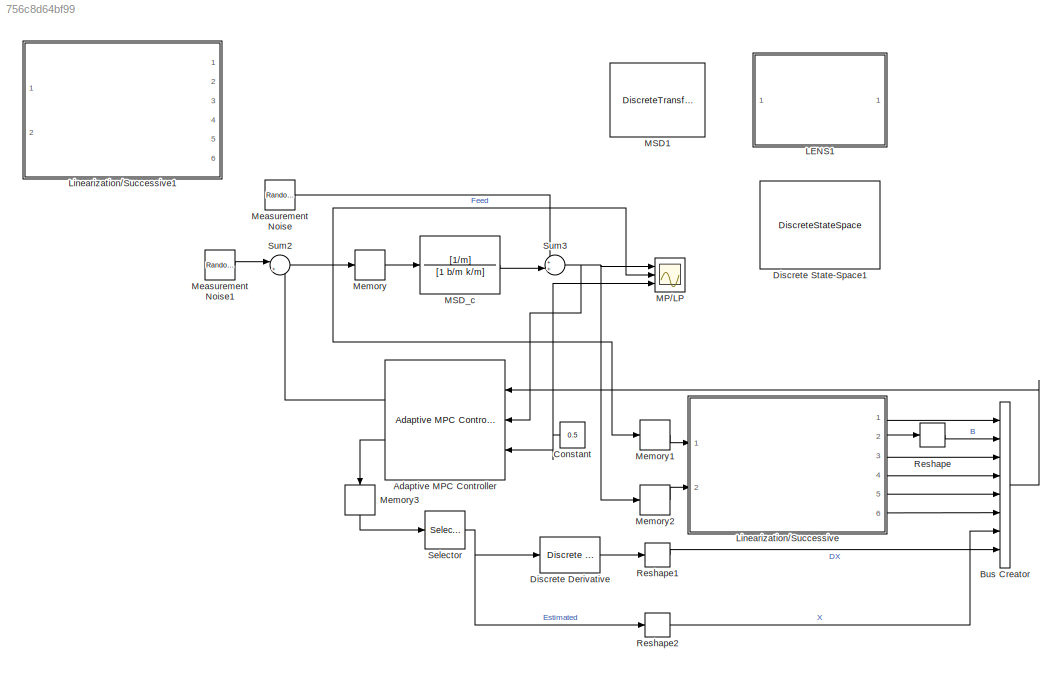
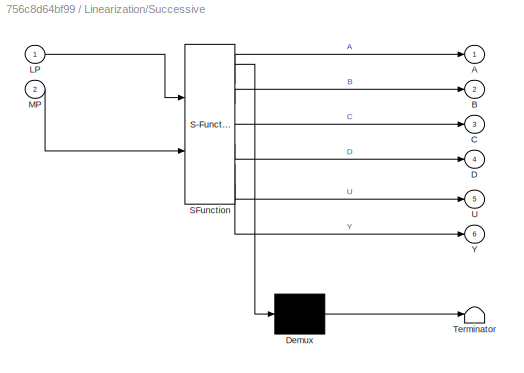
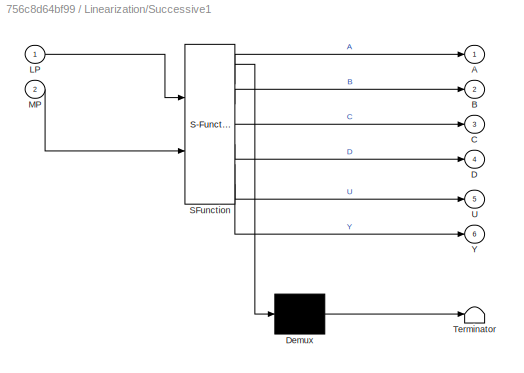
MODEL slx_756c8d64bf99
KIND model
CONFIG AbsTol = auto
CONFIG EnableMultiTasking = off
CONFIG FixedStep = auto
CONFIG MaxStep = auto
CONFIG MinStep = auto
CONFIG RelTol = 1e-3
CONFIG SampleTimeConstraint = Unconstrained
CONFIG SolverName = VariableStepAuto
CONFIG StartTime = 0.0
CONFIG StopTime = 20
BLOCK [Reference] Adaptive MPC Controller  REF=mpclib/Adaptive MPC Controller  (lib defined in mdl_ae329e0e0455)
  Ports = [3, 2]
  SCDEnableBlockLinearizationSpecification = on
  SourceBlock = mpclib/Adaptive MPC Controller
  SourceProductName = Model Predictive Control Toolbox
  SourceType = Adaptive MPC
BLOCK [BusCreator] Bus Creator
  DisplayOption = bar
  InheritFromInputs = on
  Inputs = 8
  Ports = [8, 1]
BLOCK [Constant] Constant
  SampleTime = Ts
  Value = 0.5
BLOCK [Reference] Discrete Derivative  REF=simulink/Discrete/Discrete Derivative
  Ports = [1, 1]
  SourceBlock = simulink/Discrete/Discrete Derivative
  SourceProductBaseCode = SL
  SourceType = Discrete Derivative
BLOCK [DiscreteStateSpace] Discrete State-Space1
  A = sys.A
  B = sys.B
  C = sys.C
  Commented = on
  D = sys.D
  SampleTime = Ts
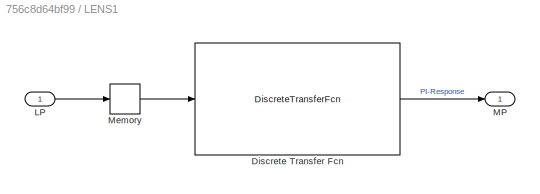
BLOCK [SubSystem] LENS1
  Commented = on
  Ports = [1, 1]
  RequestExecContextInheritance = off
BLOCK [DiscreteTransferFcn] LENS1/Discrete Transfer Fcn
  Denominator = [1.0000   -1.9816    0.9816]
  InputPortMap = u0
  Numerator = [0.2466   -0.4875    0.2409]
  Ports = [1, 1]
  SampleTime = 0.1
BLOCK [Inport] LENS1/LP
BLOCK [Outport] LENS1/MP
BLOCK [Memory] LENS1/Memory
  InheritSampleTime = on
  LinearizeAsDelay = on
BLOCK [SubSystem] Linearization//Successive
  ErrorFcn = Stateflow.Translate.translate
  PermitHierarchicalResolution = ExplicitOnly
  Ports = [2, 6]
  RequestExecContextInheritance = off
  SFBlockType = MATLAB Function
  TreatAsAtomicUnit = on
BLOCK [Demux] Linearization//Successive/ Demux 
  Outputs = 1
  Ports = [1, 1]
BLOCK [S-Function] Linearization//Successive/ SFunction 
  EnableBusSupport = on
  FunctionName = sf_sfun
  PortCounts = [2 7]
  Ports = [2, 7]
  SFcnIsStateOwnerBlock = off
  SFunctionDeploymentMode = off
  Tag = Stateflow S-Function 1
BLOCK [Terminator] Linearization//Successive/ Terminator 
BLOCK [Outport] Linearization//Successive/A
BLOCK [Outport] Linearization//Successive/B
  Port = 2
BLOCK [Outport] Linearization//Successive/C
  Port = 3
BLOCK [Outport] Linearization//Successive/D
  Port = 4
BLOCK [Inport] Linearization//Successive/LP
BLOCK [Inport] Linearization//Successive/MP
  Port = 2
BLOCK [Outport] Linearization//Successive/U
  Port = 5
BLOCK [Outport] Linearization//Successive/Y
  Port = 6
BLOCK [SubSystem] Linearization//Successive1
  Commented = on
  ErrorFcn = Stateflow.Translate.translate
  PermitHierarchicalResolution = ExplicitOnly
  Ports = [2, 6]
  RequestExecContextInheritance = off
  SFBlockType = MATLAB Function
  TreatAsAtomicUnit = on
BLOCK [Demux] Linearization//Successive1/ Demux 
  Outputs = 1
  Ports = [1, 1]
BLOCK [S-Function] Linearization//Successive1/ SFunction 
  EnableBusSupport = on
  FunctionName = sf_sfun
  PortCounts = [2 7]
  Ports = [2, 7]
  SFcnIsStateOwnerBlock = off
  SFunctionDeploymentMode = off
  Tag = Stateflow S-Function 2
BLOCK [Terminator] Linearization//Successive1/ Terminator 
BLOCK [Outport] Linearization//Successive1/A
BLOCK [Outport] Linearization//Successive1/B
  Port = 2
BLOCK [Outport] Linearization//Successive1/C
  Port = 3
BLOCK [Outport] Linearization//Successive1/D
  Port = 4
BLOCK [Inport] Linearization//Successive1/LP
BLOCK [Inport] Linearization//Successive1/MP
  Port = 2
BLOCK [Outport] Linearization//Successive1/U
  Port = 5
BLOCK [Outport] Linearization//Successive1/Y
  Port = 6
BLOCK [Scope] MP//LP
  Floating = off
  NumInputPorts = 3
  Ports = [3]
  ScopeSpecificationString = Simulink.scopes.TimeScopeBlockCfg('CurrentConfiguration', extmgr.ConfigurationSet(extmgr.Configuration('Core','General UI',true),extmgr.Configuration('Core','Source UI',true),extmgr.Configuration('Sources','WiredSimulink',true,'DataLogging',true,'DataLoggingSaveFormat','StructureWithTime','SampleTime','Ts','DataLoggingDecimation','1','DataLoggingDecimateData',true),extmgr.Configuration('Visuals','...<+1781ch>
BLOCK [DiscreteTransferFcn] MSD1
  Commented = on
  Denominator = [1.0000   -1.878    0.8869]
  InputPortMap = u0
  Numerator = [0.004802 0.004614]
  Ports = [1, 1]
  SampleTime = 0.1
BLOCK [TransferFcn] MSD_c
  Denominator = [1 b/m k/m]
  Numerator = [1/m]
BLOCK [RandomNumber] Measurement Noise
  Mean = [0]
  SampleTime = Ts
  Seed = 98325
  Variance = 0.001*[1]
BLOCK [RandomNumber] Measurement Noise1
  Mean = [0]
  SampleTime = Ts
  Seed = 98325
  Variance = 0*[1]
BLOCK [Memory] Memory
  InheritSampleTime = on
  LinearizeAsDelay = on
BLOCK [Memory] Memory1
  InheritSampleTime = on
  LinearizeAsDelay = on
BLOCK [Memory] Memory2
  InheritSampleTime = on
  LinearizeAsDelay = on
BLOCK [Memory] Memory3
  InheritSampleTime = on
  LinearizeAsDelay = on
  NameLocation = left
BLOCK [Reshape] Reshape
  OutputDimensionality = Customize
  OutputDimensions = [2,1]
  Ports = [1, 1]
BLOCK [Reshape] Reshape1
  OutputDimensionality = Customize
  OutputDimensions = [2,1]
  Ports = [1, 1]
BLOCK [Reshape] Reshape2
  OutputDimensionality = Customize
  OutputDimensions = [2,1]
  Ports = [1, 1]
BLOCK [Selector] Selector
  IndexOptions = Index vector (dialog)
  Indices = [1:2]
  InputPortWidth = 3
  NameLocation = top
  OutputSizes = 1
  Ports = [1, 1]
BLOCK [Sum] Sum2
  Inputs = |++
  Ports = [2, 1]
  SampleTime = Ts/5
BLOCK [Sum] Sum3
  Inputs = ++|
  Ports = [2, 1]
  SampleTime = Ts/5
LINE Adaptive MPC Controller:1 -> Sum2:2
LINE Adaptive MPC Controller:2 -> Memory3:1
LINE Bus Creator:1 -> Adaptive MPC Controller:1
NET Constant:1 -> Adaptive MPC Controller:3, MP//LP:3
LINE Discrete Derivative:1 -> Reshape1:1
LINE LENS1/Discrete Transfer Fcn:1 -> LENS1/MP:1
LINE LENS1/LP:1 -> LENS1/Memory:1
LINE LENS1/Memory:1 -> LENS1/Discrete Transfer Fcn:1
LINE Linearization//Successive:1 -> Bus Creator:1
LINE Linearization//Successive:2 -> Reshape:1
LINE Linearization//Successive:3 -> Bus Creator:3
LINE Linearization//Successive:4 -> Bus Creator:4
LINE Linearization//Successive:5 -> Bus Creator:5
LINE Linearization//Successive:6 -> Bus Creator:6
LINE MSD_c:1 -> Sum3:2
LINE Measurement Noise1:1 -> Sum2:1
LINE Measurement Noise:1 -> Sum3:1
LINE Memory1:1 -> Linearization//Successive:1
LINE Memory2:1 -> Linearization//Successive:2
LINE Memory3:1 -> Selector:1
LINE Memory:1 -> MSD_c:1
LINE Reshape1:1 -> Bus Creator:8
LINE Reshape2:1 -> Bus Creator:7
LINE Reshape:1 -> Bus Creator:2
NET Selector:1 -> Discrete Derivative:1, Reshape2:1
NET Sum2:1 -> MP//LP:2, Memory1:1, Memory:1
NET Sum3:1 -> Adaptive MPC Controller:2, MP//LP:1, Memory2:1
note: NET lines group one-source signal fan-out (src -> all destinations, sorted); 1:1 wires keep LINE
CHART Linearization//Successive states=1 transitions=1
  STATE_LABEL 'eML_blk_kernel()'
  STATE_LABEL "SCRIPT:\nfunction [A, B, C, D, U, Y] = fcn(LP,MP)\n% test\n% num=[0.2466 0.05715 0.001018];\n% den=[1 0.1855 0.003452];\n% Ts=0.1;\n% H=tf(num,den);\n% H_d=c2d(H,Ts);\n% n=cell2mat(H_d.num);\n% d=cell2mat(H_d.den);\n\n%plant_mdl = 'amplant';\n%sys = linearize(plant_mdl);\n%sys=minreal(sys);\n\n\nA=[0.995 0.0998; -0.0998 0.9950];\nB=[0.004996 0.09983]';\nC=[0 1];\n% A=[0.1372, -0.8444; -0.1372, 0.8444];\n% B=[-0.7071,...<+145ch>"
CHART Linearization//Successive1 states=1 transitions=1
  STATE_LABEL 'eML_blk_kernel()'
  STATE_LABEL "SCRIPT:\nfunction [A, B, C, D, U, Y] = fcn(LP,MP)\n\n% num=[0.2466 0.05715 0.001018];\n% den=[1 0.1855 0.003452];\n% Ts=0.1;\n% H=tf(num,den);\n% H_d=c2d(H,Ts);\n% n=cell2mat(H_d.num);\n% d=cell2mat(H_d.den);\n\n%plant_mdl = 'amplant';\n%sys = linearize(plant_mdl);\n%sys=minreal(sys);\n\nA=[0.1372, -0.8444; -0.1372, 0.8444];\nB=[-0.7071, -0.7071]';\nC=[-0.1732, -0.1755];\n% A=[0 0 0; 1 1.982 -0.9816; 0 1 0];\n% B=[1...<+66ch>"
CHART  states=0 transitions=0
CHART  states=0 transitions=0
